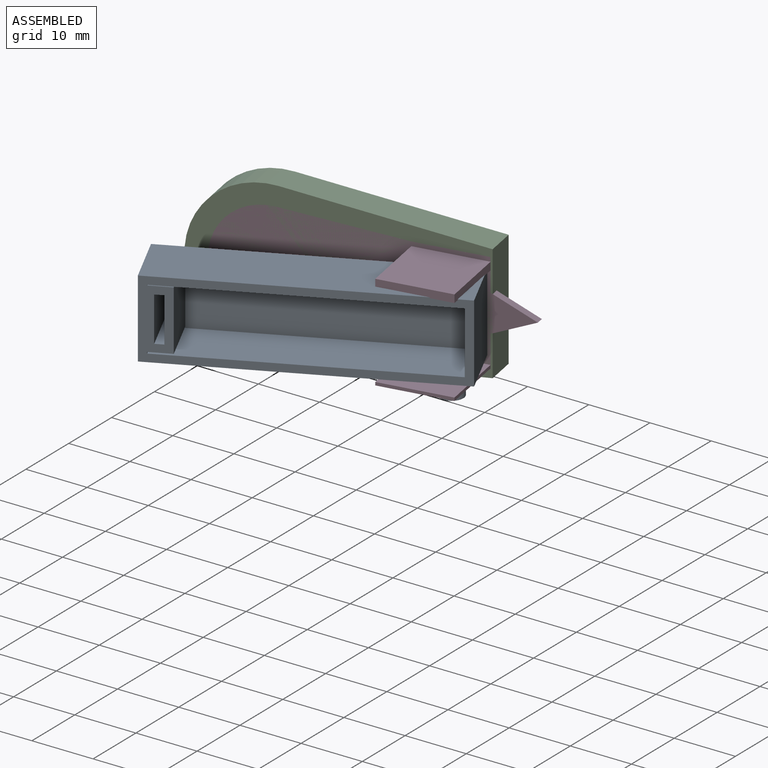
[diagram: assembled view]
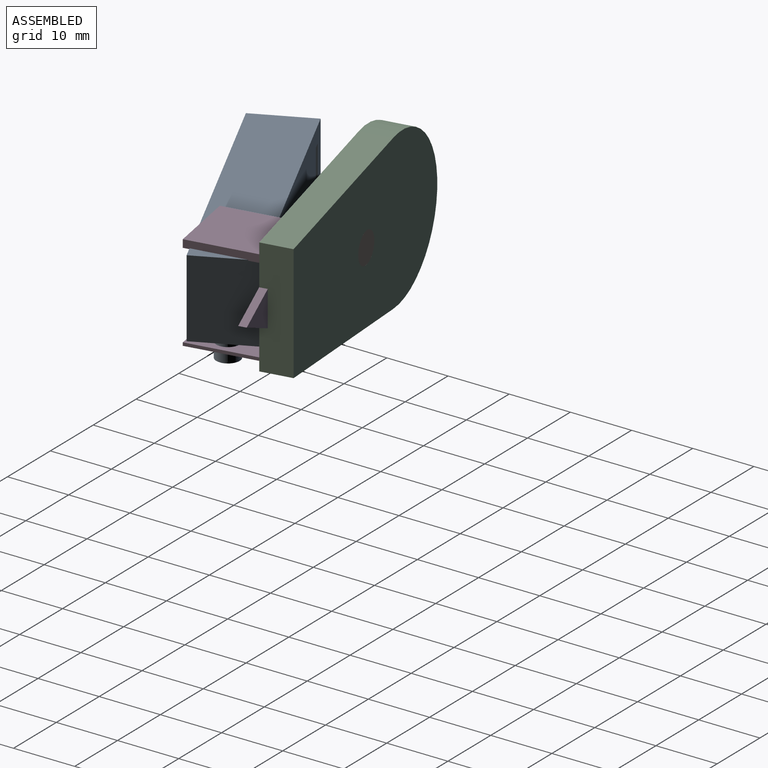
[diagram: assembled view, second angle]
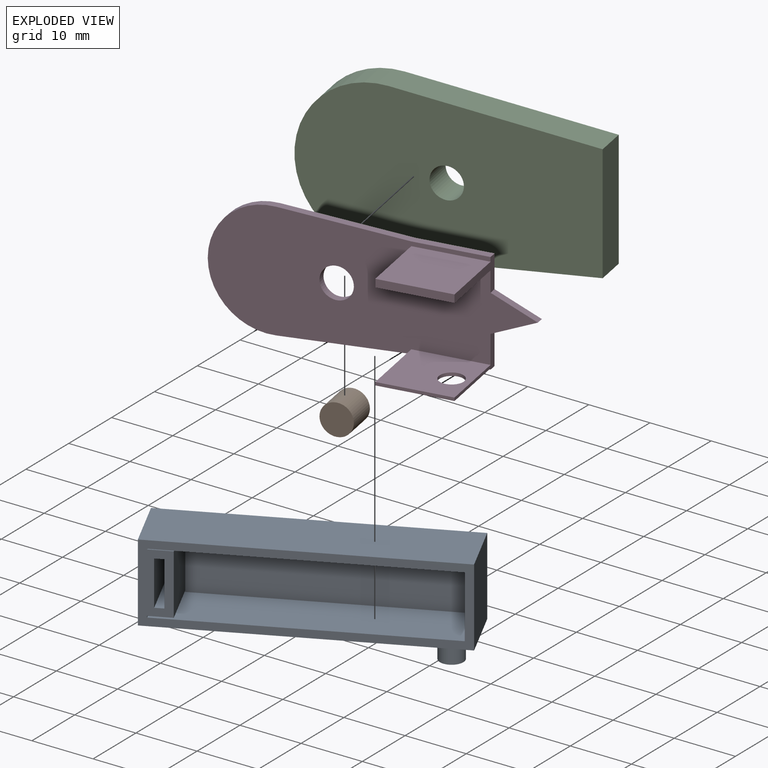
[diagram: exploded view]
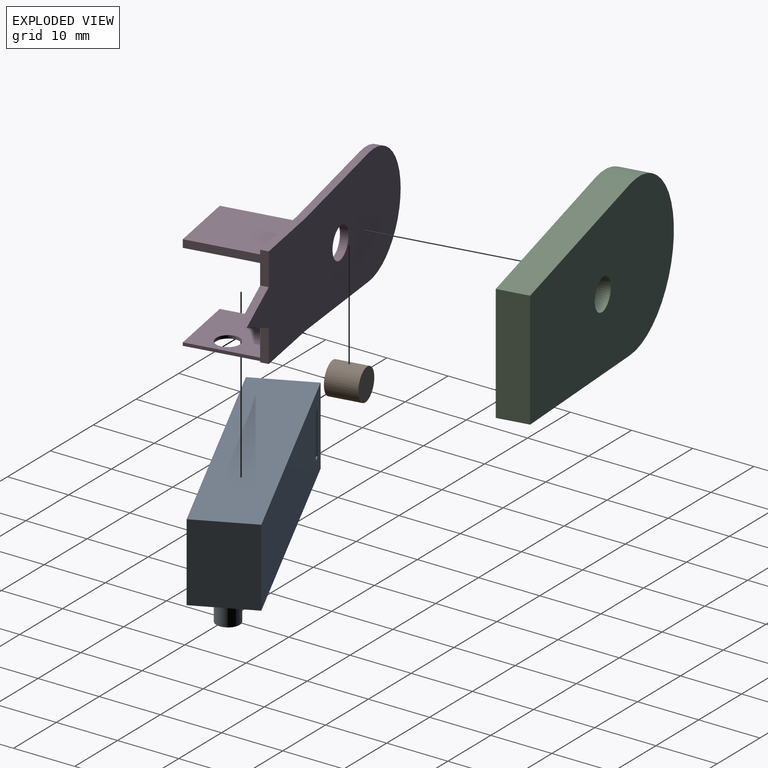
[diagram: exploded view, second angle]
ASSEMBLY  parts=4 mates=3
PART A: 21 faces, bbox 45.7x10.2x16.5 mm
  f0: plane 45.72x10.16mm, normal (0,0,1), area 464.5mm2, adj f1,f7,f8,f9
  f1: plane 12.7x10.16mm, normal (-1,0,0), area 129mm2, adj f0,f2,f8,f9
  f2: plane 45.72x10.16mm, normal (0,0,-1), area 453.1mm2, adj f1,f7,f8,f9,f19
  f3: plane 10.16x7.28mm, normal (1,0,0), area 74mm2, adj f4,f6,f8,f9
  f4: plane 10.16x1.39mm, normal (0,0,-1), area 14.2mm2, adj f3,f5,f8,f9
  f5: plane 10.16x7.28mm, normal (-1,0,0), area 74mm2, adj f4,f6,f8,f9
  f6: plane 10.16x1.39mm, normal (0,0,1), area 14.2mm2, adj f3,f5,f8,f9
  f7: plane 12.7x10.16mm, normal (1,0,0), area 129mm2, adj f0,f2,f8,f9
  f8: plane 45.72x12.7mm, normal (0,-1,0), area 167.3mm2, adj f0,f1,f2,f3,f4,f5,f6,f7
  f9: plane 45.72x12.7mm, normal (0,1,0), area 570.5mm2, adj f0,f1,f2,f3,f4,f5,f6,f7
  f10: plane 8.89x0.25mm, normal (1,0,0), area 2.2mm2, adj f8,f13,f16,f18
  f11: plane 43.18x8.89mm, normal (0,0,-1), area 383.9mm2, adj f8,f12,f17,f18
  f12: plane 8.89x0.09mm, normal (1,0,0), area 0.8mm2, adj f8,f11,f14,f18
  f13: plane 43.18x8.89mm, normal (0,0,1), area 383.9mm2, adj f8,f10,f17,f18
  f14: plane 8.89x3.62mm, normal (0,0,1), area 32.1mm2, adj f8,f12,f15,f18
  f15: plane 9.82x8.89mm, normal (1,0,0), area 87.3mm2, adj f8,f14,f16,f18
  f16: plane 8.89x3.62mm, normal (0,0,-1), area 32.1mm2, adj f8,f10,f15,f18
  f17: plane 10.16x8.89mm, normal (-1,0,0), area 90.3mm2, adj f8,f11,f13,f18
  f18: plane 43.18x10.16mm, normal (0,-1,0), area 403.2mm2, adj f10,f11,f12,f13,f14,f15,f16,f17
  f19: cylinder r=1.91mm len=3.81mm, axis (0,0,1), area 45.6mm2, adj f2,f20
  f20: plane 3.81x3.81mm, normal (0,0,-1), area 11.4mm2, adj f19
PART B: 3 faces, bbox 5.1x5.1x5.1 mm
  f0: cylinder r=2.54mm len=5.08mm, axis (0,1,0), area 81.1mm2, adj f1,f2
  f1: plane 5.08x5.08mm, normal (0,-1,0), area 20.3mm2, adj f0
  f2: plane 5.08x5.08mm, normal (0,1,0), area 20.3mm2, adj f0
PART C: 7 faces, bbox 45.5x5.1x25.4 mm
  f0: plane 31.6x5.08mm, normal (0.1,0,1), area 161.3mm2, adj f1,f3,f5,f6
  f1: cylinder r=12.7mm len=25.4mm, axis (0,1,0), area 215.4mm2, adj f0,f2,f5,f6
  f2: plane 31.6x5.08mm, normal (0.1,0,-1), area 161.3mm2, adj f1,f3,f5,f6
  f3: plane 19.05x5.08mm, normal (1,0,0), area 96.8mm2, adj f0,f2,f5,f6
  f4: cylinder r=2.54mm len=5.08mm, axis (0,1,0), area 81.1mm2, adj f5,f6
  f5: plane 45.54x25.4mm, normal (0,-1,0), area 965mm2, adj f0,f1,f2,f3,f4
  f6: plane 45.54x25.4mm, normal (0,1,0), area 965mm2, adj f0,f1,f2,f3,f4
PART D: 21 faces, bbox 48.8x12.7x19.1 mm
  f0: plane 12.7x5.28mm, normal (1,0,0), area 21.2mm2, adj f1,f8,f10,f11,f17,f19,f20
  f1: plane 11.71x1.27mm, normal (0,0,1), area 14.9mm2, adj f0,f2,f10,f11
  f2: plane 19.99x1.27mm, normal (0.06,0,1), area 25.4mm2, adj f1,f3,f10,f11
  f3: cylinder r=9.53mm len=19.05mm, axis (0,1,0), area 39.4mm2, adj f2,f4,f10,f11
  f4: plane 19.99x1.27mm, normal (0.06,0,-1), area 25.4mm2, adj f3,f5,f10,f11
  f5: plane 11.71x1.27mm, normal (0,0,-1), area 14.9mm2, adj f4,f6,f10,f11
  f6: plane 12.7x5.28mm, normal (1,0,0), area 12.5mm2, adj f5,f7,f10,f11,f12,f14,f15
  f7: plane 6.99x3.04mm, normal (0.4,0,-0.92), area 9.7mm2, adj f6,f8,f10,f11
  f8: plane 6.99x3.04mm, normal (0.4,0,0.92), area 9.7mm2, adj f0,f7,f10,f11
  f9: cylinder r=2.54mm len=5.08mm, axis (0,1,0), area 20.3mm2, adj f10,f11
  f10: plane 48.77x19.05mm, normal (0,-1,0), area 684.5mm2, adj f0,f1,f2,f3,f4,f5,f6,f7
  f11: plane 48.77x19.05mm, normal (0,1,0), area 705.3mm2, adj f0,f1,f2,f3,f4,f5,f6,f7
  f12: plane 11.71x0.51mm, normal (0,-1,0), area 5.9mm2, adj f6,f13,f14,f15
  f13: plane 11.43x0.51mm, normal (-1,0,0), area 5.8mm2, adj f10,f12,f14,f15
  f14: plane 11.71x11.43mm, normal (0,0,-1), area 122.4mm2, adj f6,f10,f12,f13,f16
  f15: plane 11.71x11.43mm, normal (0,0,1), area 122.4mm2, adj f6,f10,f12,f13,f16
  f16: cylinder r=1.91mm len=3.81mm, axis (0,0,1), area 6.1mm2, adj f14,f15
  f17: plane 11.71x1.27mm, normal (0,-1,0), area 14.9mm2, adj f0,f18,f19,f20
  f18: plane 11.43x1.27mm, normal (-1,0,0), area 14.5mm2, adj f10,f17,f19,f20
  f19: plane 11.71x11.43mm, normal (0,0,-1), area 133.8mm2, adj f0,f10,f17,f18
  f20: plane 11.71x11.43mm, normal (0,0,1), area 133.8mm2, adj f0,f10,f17,f18
PLACE A rot(axis=(0,0,1),25deg) t=(6.82,-9.77,57.34)mm
PLACE B rot(axis=(0,0,1),10deg) t=(-12.76,-3.11,-16.55)mm
PLACE C rot(axis=(0,0,1),10deg) t=(23.61,3.31,15.2)mm fixed
PLACE D rot(axis=(0,0,1),10deg) t=(-35.62,-11.01,15.2)mm
MATE revolute A.f19 <-> D.f16  axis (0,0,1) through (22.39,-8.27,7.07)mm
MATE fastened C.f4 <-> D.f9  axis (0.17,-0.98,0) through (1.8,-5.7,15.2)mm
MATE fastened B.f0 <-> C.f4  axis (0.17,-0.98,0) through (1.8,-5.7,15.2)mm
